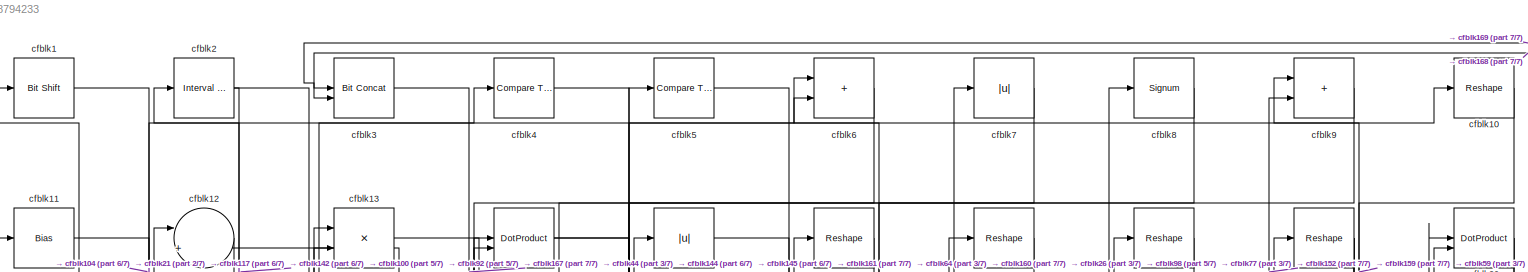
[diagram: root canvas - part 1/7, full width, top band]
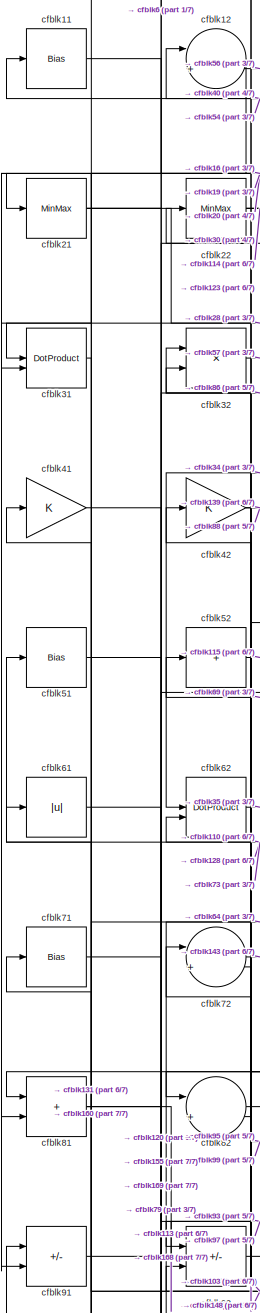
[diagram: root canvas - part 2/7, top left region]
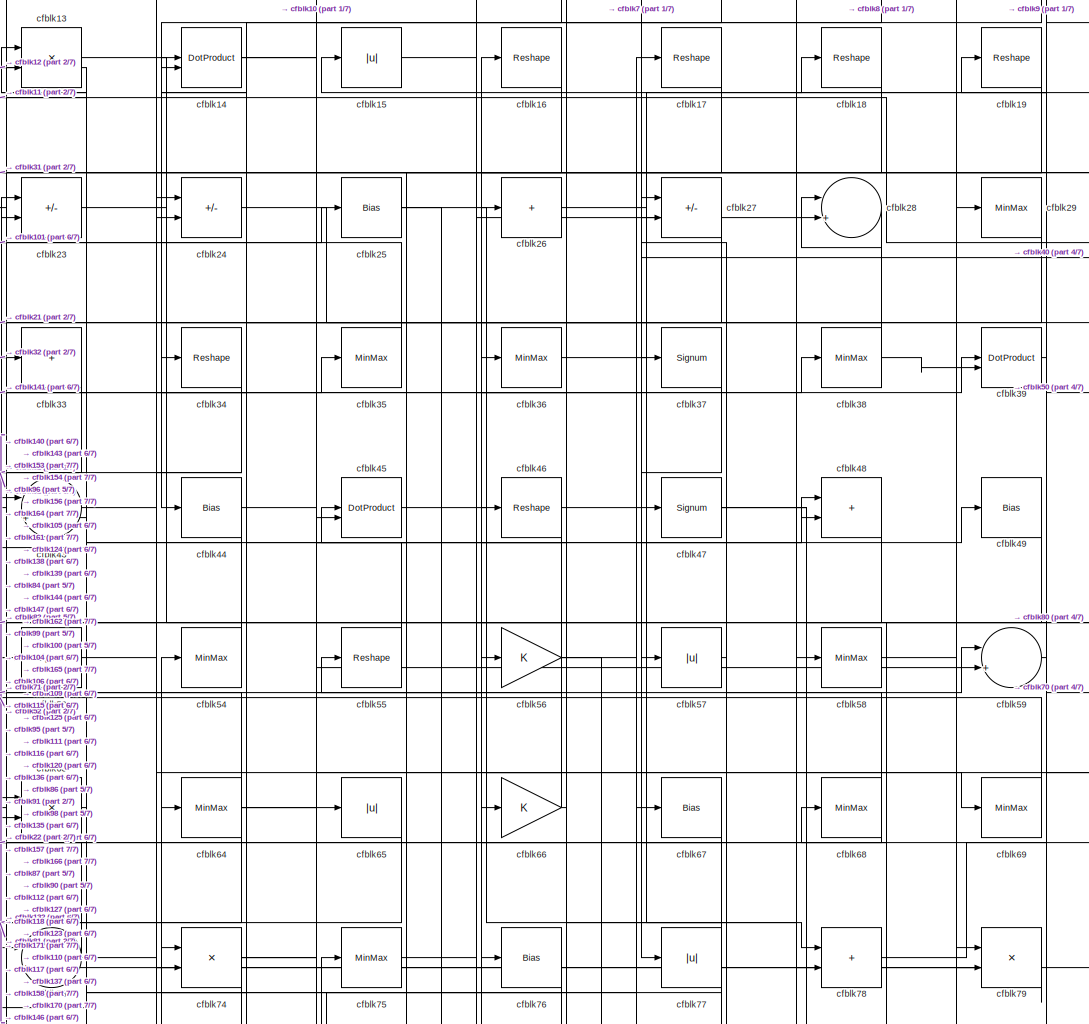
[diagram: root canvas - part 3/7, top center region]
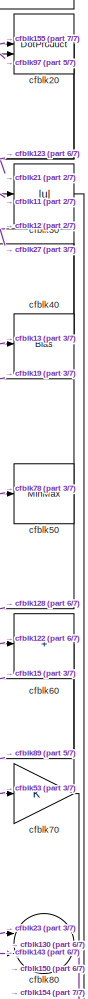
[diagram: root canvas - part 4/7, top right region]
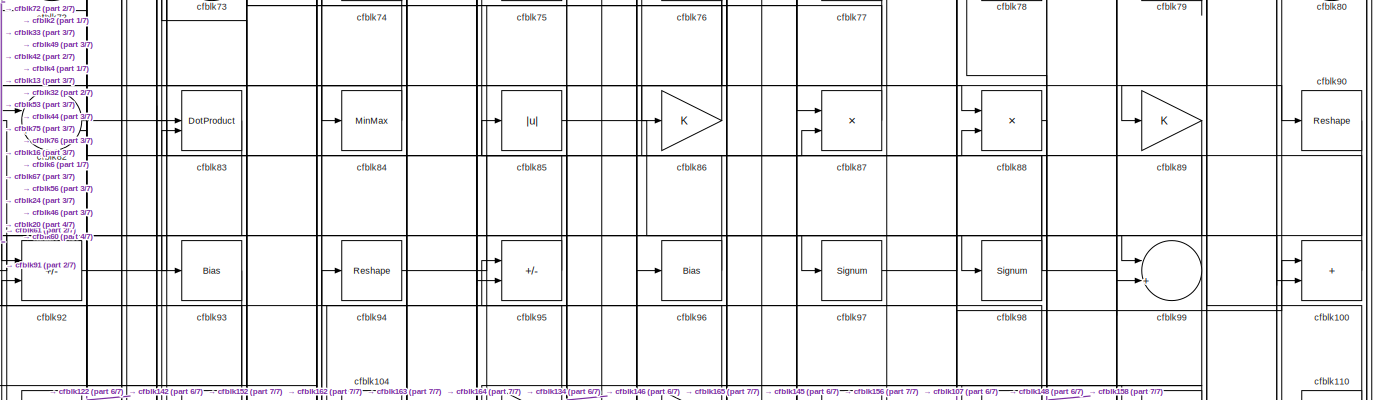
[diagram: root canvas - part 5/7, full width, middle band]
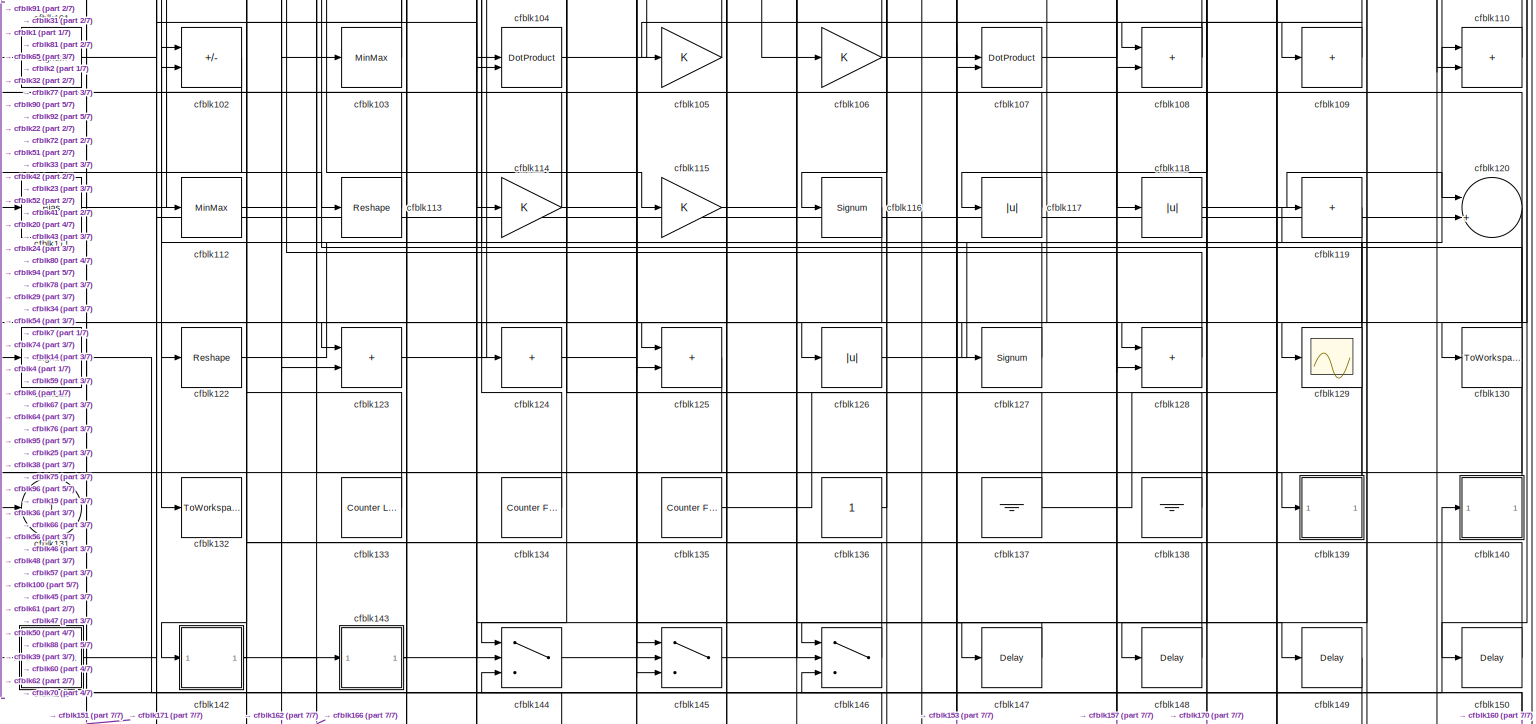
[diagram: root canvas - part 6/7, full width, bottom band]
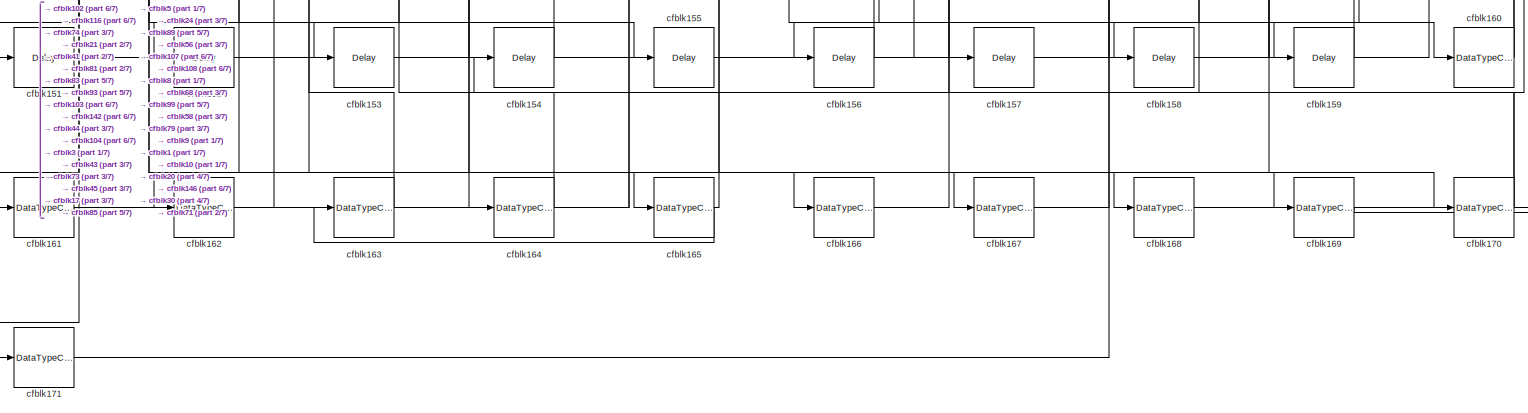
[diagram: root canvas - part 7/7, full width, bottom band]
MODEL slx_f9c0b8794233
KIND model
CONFIG AbsTol = auto
CONFIG EnableMultiTasking = off
CONFIG FixedStep = auto
CONFIG MaxStep = auto
CONFIG MinStep = auto
CONFIG RelTol = 1e-3
CONFIG SampleTimeConstraint = Unconstrained
CONFIG SolverName = VariableStepAuto
CONFIG StartTime = 0.0
CONFIG StopTime = 10.0
BLOCK [Reference] cfblk1  REF=hdlsllib/Logic and Bit
Operations/Bit Shift
  SourceBlock = hdlsllib/Logic and Bit\nOperations/Bit Shift
  SourceType = Bit Shift
BLOCK [Reshape] cfblk10
BLOCK [Sum] cfblk100
  IconShape = rectangular
BLOCK [Signum] cfblk101
BLOCK [Sum] cfblk102
  IconShape = rectangular
  Inputs = +-
BLOCK [MinMax] cfblk103
BLOCK [DotProduct] cfblk104
  OutDataTypeStr = Inherit: Inherit via internal rule
BLOCK [Gain] cfblk105
BLOCK [Gain] cfblk106
BLOCK [DotProduct] cfblk107
  OutDataTypeStr = Inherit: Inherit via internal rule
BLOCK [Sum] cfblk108
  IconShape = rectangular
BLOCK [Sum] cfblk109
  IconShape = rectangular
  Inputs = +
BLOCK [Bias] cfblk11
  Bias = 0.0
  SaturateOnIntegerOverflow = off
BLOCK [Sum] cfblk110
  IconShape = rectangular
BLOCK [Bias] cfblk111
  Bias = 0.0
  SaturateOnIntegerOverflow = off
BLOCK [MinMax] cfblk112
BLOCK [Reshape] cfblk113
BLOCK [Gain] cfblk114
BLOCK [Gain] cfblk115
BLOCK [Signum] cfblk116
BLOCK [Abs] cfblk117
  SaturateOnIntegerOverflow = off
BLOCK [Abs] cfblk118
  SaturateOnIntegerOverflow = off
BLOCK [Sum] cfblk119
  IconShape = rectangular
  Inputs = +
BLOCK [Sum] cfblk12
  Inputs = |++
BLOCK [Sum] cfblk120
  Inputs = |++
BLOCK [Signum] cfblk121
BLOCK [Reshape] cfblk122
BLOCK [Sum] cfblk123
  IconShape = rectangular
BLOCK [Sum] cfblk124
  IconShape = rectangular
  Inputs = +
BLOCK [Sum] cfblk125
  IconShape = rectangular
BLOCK [Abs] cfblk126
  SaturateOnIntegerOverflow = off
BLOCK [Signum] cfblk127
BLOCK [Sum] cfblk128
  IconShape = rectangular
BLOCK [Scope] cfblk129
  Floating = off
  NumInputPorts = 1
  ScopeSpecificationString = Simulink.scopes.TimeScopeBlockCfg('CurrentConfiguration', extmgr.ConfigurationSet(extmgr.Configuration('Core','General UI',true),extmgr.Configuration('Core','Source UI',true),extmgr.Configuration('Sources','WiredSimulink',true,'DataLoggingVariableName','ScopeData2','DataLoggingSaveFormat','Array','DataLoggingLimitDataPoints',true,'DataLoggingDecimation','1'),extmgr.Configuration('Visuals','Time Do...<+868ch>
BLOCK [Product] cfblk13
  Inputs = */
  RndMeth = Zero
  SaturateOnIntegerOverflow = on
BLOCK [ToWorkspace] cfblk130
  MaxDataPoints = inf
  SampleTime = -1
  SaveFormat = Timeseries
  VariableName = simout
BLOCK [Outport] cfblk131
  VectorParamsAs1DForOutWhenUnconnected = off
BLOCK [ToWorkspace] cfblk132
  MaxDataPoints = inf
  SampleTime = -1
  SaveFormat = Timeseries
  VariableName = simout
BLOCK [Reference] cfblk133  REF=hdlsllib/Sources/Counter
Limited
  SourceBlock = hdlsllib/Sources/Counter\nLimited
  SourceType = Counter Limited
BLOCK [Reference] cfblk134  REF=hdlsllib/Sources/Counter
Free-Running
  SourceBlock = hdlsllib/Sources/Counter\nFree-Running
  SourceType = Counter Free-Running
BLOCK [Reference] cfblk135  REF=hdlsllib/Sources/Counter
Free-Running
  SourceBlock = hdlsllib/Sources/Counter\nFree-Running
  SourceType = Counter Free-Running
BLOCK [Constant] cfblk136
  SampleTime = -1
BLOCK [Ground] cfblk137
BLOCK [Ground] cfblk138
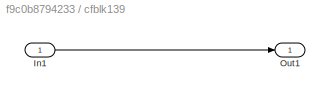
BLOCK [SubSystem] cfblk139
  LibrarySourceBlock = hdlsllib/Ports &\nSubsystems/Subsystem
BLOCK [Inport] cfblk139/In1
BLOCK [Outport] cfblk139/Out1
BLOCK [DotProduct] cfblk14
  OutDataTypeStr = Inherit: Inherit via internal rule
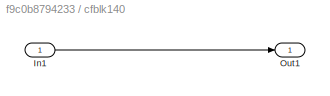
BLOCK [SubSystem] cfblk140
  LibrarySourceBlock = hdlsllib/Ports &\nSubsystems/Subsystem
BLOCK [Inport] cfblk140/In1
BLOCK [Outport] cfblk140/Out1
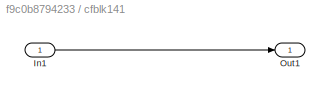
BLOCK [SubSystem] cfblk141
  LibrarySourceBlock = hdlsllib/Ports &\nSubsystems/Subsystem
BLOCK [Inport] cfblk141/In1
BLOCK [Outport] cfblk141/Out1
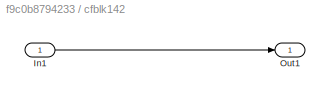
BLOCK [SubSystem] cfblk142
  LibrarySourceBlock = hdlsllib/Ports &\nSubsystems/Subsystem
BLOCK [Inport] cfblk142/In1
BLOCK [Outport] cfblk142/Out1
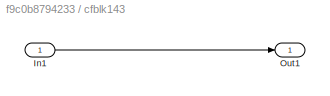
BLOCK [SubSystem] cfblk143
  LibrarySourceBlock = hdlsllib/Ports &\nSubsystems/Subsystem
BLOCK [Inport] cfblk143/In1
BLOCK [Outport] cfblk143/Out1
BLOCK [Switch] cfblk144
  InputSameDT = off
  SaturateOnIntegerOverflow = off
BLOCK [Switch] cfblk145
  InputSameDT = off
  SaturateOnIntegerOverflow = off
BLOCK [Switch] cfblk146
  InputSameDT = off
  SaturateOnIntegerOverflow = off
BLOCK [Delay] cfblk147
  InputPortMap = u0
  SampleTime = 1
BLOCK [Delay] cfblk148
  InputPortMap = u0
  SampleTime = 1
BLOCK [Delay] cfblk149
  InputPortMap = u0
  SampleTime = 1
BLOCK [Abs] cfblk15
  SaturateOnIntegerOverflow = off
BLOCK [Delay] cfblk150
  InputPortMap = u0
  SampleTime = 1
BLOCK [Delay] cfblk151
  InputPortMap = u0
  SampleTime = 1
BLOCK [Delay] cfblk152
  InputPortMap = u0
  SampleTime = 1
BLOCK [Delay] cfblk153
  InputPortMap = u0
  SampleTime = 1
BLOCK [Delay] cfblk154
  InputPortMap = u0
  SampleTime = 1
BLOCK [Delay] cfblk155
  InputPortMap = u0
  SampleTime = 1
BLOCK [Delay] cfblk156
  InputPortMap = u0
  SampleTime = 1
BLOCK [Delay] cfblk157
  InputPortMap = u0
  SampleTime = 1
BLOCK [Delay] cfblk158
  InputPortMap = u0
  SampleTime = 1
BLOCK [Delay] cfblk159
  InputPortMap = u0
  SampleTime = 1
BLOCK [Reshape] cfblk16
BLOCK [DataTypeConversion] cfblk160
  RndMeth = Floor
  SaturateOnIntegerOverflow = off
BLOCK [DataTypeConversion] cfblk161
  OutDataTypeStr = uint8
  RndMeth = Floor
  SaturateOnIntegerOverflow = off
BLOCK [DataTypeConversion] cfblk162
  RndMeth = Floor
  SaturateOnIntegerOverflow = off
BLOCK [DataTypeConversion] cfblk163
  OutDataTypeStr = uint8
  RndMeth = Floor
  SaturateOnIntegerOverflow = off
BLOCK [DataTypeConversion] cfblk164
  OutDataTypeStr = uint8
  RndMeth = Floor
  SaturateOnIntegerOverflow = off
BLOCK [DataTypeConversion] cfblk165
  RndMeth = Floor
  SaturateOnIntegerOverflow = off
BLOCK [DataTypeConversion] cfblk166
  OutDataTypeStr = uint8
  RndMeth = Floor
  SaturateOnIntegerOverflow = off
BLOCK [DataTypeConversion] cfblk167
  OutDataTypeStr = uint8
  RndMeth = Floor
  SaturateOnIntegerOverflow = off
BLOCK [DataTypeConversion] cfblk168
  OutDataTypeStr = uint8
  RndMeth = Floor
  SaturateOnIntegerOverflow = off
BLOCK [DataTypeConversion] cfblk169
  OutDataTypeStr = uint8
  RndMeth = Floor
  SaturateOnIntegerOverflow = off
BLOCK [Reshape] cfblk17
BLOCK [DataTypeConversion] cfblk170
  RndMeth = Floor
  SaturateOnIntegerOverflow = off
BLOCK [DataTypeConversion] cfblk171
  OutDataTypeStr = uint8
  RndMeth = Floor
  SaturateOnIntegerOverflow = off
BLOCK [Reshape] cfblk18
BLOCK [Reshape] cfblk19
BLOCK [Reference] cfblk2  REF=hdlsllib/Logic and Bit
Operations/Interval Test
  SourceBlock = hdlsllib/Logic and Bit\nOperations/Interval Test
  SourceType = Interval Test
BLOCK [DotProduct] cfblk20
  OutDataTypeStr = Inherit: Inherit via internal rule
BLOCK [MinMax] cfblk21
BLOCK [MinMax] cfblk22
BLOCK [Sum] cfblk23
  IconShape = rectangular
  Inputs = +-
BLOCK [Sum] cfblk24
  IconShape = rectangular
  Inputs = +-
BLOCK [Bias] cfblk25
  Bias = 0.0
  SaturateOnIntegerOverflow = off
BLOCK [Sum] cfblk26
  IconShape = rectangular
  Inputs = +
BLOCK [Sum] cfblk27
  IconShape = rectangular
  Inputs = +-
BLOCK [Sum] cfblk28
  Inputs = |++
BLOCK [MinMax] cfblk29
BLOCK [Reference] cfblk3  REF=hdlsllib/Logic and Bit
Operations/Bit Concat
  SourceBlock = hdlsllib/Logic and Bit\nOperations/Bit Concat
  SourceType = Bit Concat
BLOCK [Abs] cfblk30
  SaturateOnIntegerOverflow = off
BLOCK [DotProduct] cfblk31
  OutDataTypeStr = Inherit: Inherit via internal rule
BLOCK [Product] cfblk32
  Inputs = */
  RndMeth = Zero
  SaturateOnIntegerOverflow = on
BLOCK [Sum] cfblk33
  IconShape = rectangular
  Inputs = +
BLOCK [Reshape] cfblk34
BLOCK [MinMax] cfblk35
BLOCK [MinMax] cfblk36
BLOCK [Signum] cfblk37
BLOCK [MinMax] cfblk38
BLOCK [DotProduct] cfblk39
  OutDataTypeStr = Inherit: Inherit via internal rule
BLOCK [Reference] cfblk4  REF=hdlsllib/Logic and Bit
Operations/Compare
To Constant
  SourceBlock = hdlsllib/Logic and Bit\nOperations/Compare\nTo Constant
  SourceType = Compare To Constant
BLOCK [Bias] cfblk40
  Bias = 0.0
  SaturateOnIntegerOverflow = off
BLOCK [Gain] cfblk41
BLOCK [Gain] cfblk42
BLOCK [Sum] cfblk43
  Inputs = |++
BLOCK [Bias] cfblk44
  Bias = 0.0
  SaturateOnIntegerOverflow = off
BLOCK [DotProduct] cfblk45
  OutDataTypeStr = Inherit: Inherit via internal rule
BLOCK [Reshape] cfblk46
BLOCK [Signum] cfblk47
BLOCK [Sum] cfblk48
  IconShape = rectangular
BLOCK [Bias] cfblk49
  Bias = 0.0
  SaturateOnIntegerOverflow = off
BLOCK [Reference] cfblk5  REF=hdlsllib/Logic and Bit
Operations/Compare
To Constant
  SourceBlock = hdlsllib/Logic and Bit\nOperations/Compare\nTo Constant
  SourceType = Compare To Constant
BLOCK [MinMax] cfblk50
BLOCK [Bias] cfblk51
  Bias = 0.0
  SaturateOnIntegerOverflow = off
BLOCK [Sum] cfblk52
  IconShape = rectangular
  Inputs = +
BLOCK [Signum] cfblk53
BLOCK [MinMax] cfblk54
BLOCK [Reshape] cfblk55
BLOCK [Gain] cfblk56
BLOCK [Abs] cfblk57
  SaturateOnIntegerOverflow = off
BLOCK [MinMax] cfblk58
BLOCK [Sum] cfblk59
  Inputs = |++
BLOCK [Sum] cfblk6
  IconShape = rectangular
BLOCK [Sum] cfblk60
  IconShape = rectangular
  Inputs = +
BLOCK [Abs] cfblk61
  SaturateOnIntegerOverflow = off
BLOCK [DotProduct] cfblk62
  OutDataTypeStr = Inherit: Inherit via internal rule
BLOCK [Product] cfblk63
  Inputs = */
  RndMeth = Zero
  SaturateOnIntegerOverflow = on
BLOCK [MinMax] cfblk64
BLOCK [Abs] cfblk65
  SaturateOnIntegerOverflow = off
BLOCK [Gain] cfblk66
BLOCK [Bias] cfblk67
  Bias = 0.0
  SaturateOnIntegerOverflow = off
BLOCK [MinMax] cfblk68
BLOCK [MinMax] cfblk69
BLOCK [Abs] cfblk7
  SaturateOnIntegerOverflow = off
BLOCK [Gain] cfblk70
BLOCK [Bias] cfblk71
  Bias = 0.0
  SaturateOnIntegerOverflow = off
BLOCK [Sum] cfblk72
  Inputs = |++
BLOCK [Sum] cfblk73
  Inputs = |++
BLOCK [Product] cfblk74
  Inputs = */
  RndMeth = Zero
  SaturateOnIntegerOverflow = on
BLOCK [MinMax] cfblk75
BLOCK [Bias] cfblk76
  Bias = 0.0
  SaturateOnIntegerOverflow = off
BLOCK [Abs] cfblk77
  SaturateOnIntegerOverflow = off
BLOCK [Sum] cfblk78
  IconShape = rectangular
BLOCK [Product] cfblk79
  Inputs = */
  RndMeth = Zero
  SaturateOnIntegerOverflow = on
BLOCK [Signum] cfblk8
BLOCK [Sum] cfblk80
  Inputs = |++
BLOCK [Sum] cfblk81
  IconShape = rectangular
BLOCK [Sum] cfblk82
  Inputs = |++
BLOCK [DotProduct] cfblk83
  OutDataTypeStr = Inherit: Inherit via internal rule
BLOCK [MinMax] cfblk84
BLOCK [Abs] cfblk85
  SaturateOnIntegerOverflow = off
BLOCK [Gain] cfblk86
BLOCK [Product] cfblk87
  Inputs = */
  RndMeth = Zero
  SaturateOnIntegerOverflow = on
BLOCK [Product] cfblk88
  Inputs = */
  RndMeth = Zero
  SaturateOnIntegerOverflow = on
BLOCK [Gain] cfblk89
BLOCK [Sum] cfblk9
  IconShape = rectangular
BLOCK [Reshape] cfblk90
BLOCK [Sum] cfblk91
  IconShape = rectangular
  Inputs = +-
BLOCK [Sum] cfblk92
  IconShape = rectangular
  Inputs = +-
BLOCK [Bias] cfblk93
  Bias = 0.0
  SaturateOnIntegerOverflow = off
BLOCK [Reshape] cfblk94
BLOCK [Sum] cfblk95
  IconShape = rectangular
  Inputs = +-
BLOCK [Bias] cfblk96
  Bias = 0.0
  SaturateOnIntegerOverflow = off
BLOCK [Signum] cfblk97
BLOCK [Signum] cfblk98
BLOCK [Sum] cfblk99
  Inputs = |++
LINE cfblk100:1 -> cfblk75:1
LINE cfblk101:1 -> cfblk25:1
LINE cfblk102:1 -> cfblk171:1
LINE cfblk103:1 -> cfblk41:1
LINE cfblk104:1 -> cfblk67:1
LINE cfblk105:1 -> cfblk64:1
NET cfblk106:1 -> cfblk45:1, cfblk48:2
LINE cfblk107:1 -> cfblk100:1
NET cfblk108:1 -> cfblk105:1, cfblk61:1
LINE cfblk109:1 -> cfblk108:1
LINE cfblk10:1 -> cfblk159:1
LINE cfblk110:1 -> cfblk62:2
LINE cfblk111:1 -> cfblk24:2
LINE cfblk112:1 -> cfblk33:1
LINE cfblk113:1 -> cfblk91:1
NET cfblk114:1 -> cfblk101:1, cfblk126:1
LINE cfblk115:1 -> cfblk38:1
LINE cfblk116:1 -> cfblk151:1
LINE cfblk117:1 -> cfblk2:1
LINE cfblk118:1 -> cfblk120:1
LINE cfblk119:1 -> cfblk121:1
LINE cfblk11:1 -> cfblk30:1
NET cfblk120:1 -> cfblk129:1, cfblk145:3, cfblk66:1
LINE cfblk121:1 -> cfblk140:1
LINE cfblk122:1 -> cfblk60:1
LINE cfblk123:1 -> cfblk78:2
LINE cfblk124:1 -> cfblk110:1
LINE cfblk125:1 -> cfblk141:1
LINE cfblk126:1 -> cfblk119:1
LINE cfblk127:1 -> cfblk102:1
LINE cfblk128:1 -> cfblk51:1
LINE cfblk12:1 -> cfblk31:2
LINE cfblk133:1 -> cfblk72:2
LINE cfblk134:1 -> cfblk94:1
LINE cfblk135:1 -> cfblk47:1
LINE cfblk136:1 -> cfblk36:1
NET cfblk137:1 -> cfblk14:1, cfblk29:1
LINE cfblk138:1 -> cfblk74:1
LINE cfblk139/In1:1 -> cfblk139/Out1:1
NET cfblk139:1 -> cfblk34:1, cfblk54:1
LINE cfblk13:1 -> cfblk40:1
LINE cfblk140/In1:1 -> cfblk140/Out1:1
LINE cfblk140:1 -> cfblk23:1
LINE cfblk141/In1:1 -> cfblk141/Out1:1
LINE cfblk141:1 -> cfblk39:1
LINE cfblk142/In1:1 -> cfblk142/Out1:1
NET cfblk142:1 -> cfblk166:1, cfblk92:2
LINE cfblk143/In1:1 -> cfblk143/Out1:1
NET cfblk143:1 -> cfblk43:1, cfblk80:2
LINE cfblk144:1 -> cfblk59:1
LINE cfblk145:1 -> cfblk96:1
LINE cfblk146:1 -> cfblk95:1
LINE cfblk147:1 -> cfblk144:2
LINE cfblk148:1 -> cfblk32:2
LINE cfblk149:1 -> cfblk144:3
NET cfblk14:1 -> cfblk147:1, cfblk65:1
LINE cfblk150:1 -> cfblk102:2
LINE cfblk151:1 -> cfblk104:1
LINE cfblk152:1 -> cfblk9:2
LINE cfblk153:1 -> cfblk107:2
LINE cfblk154:1 -> cfblk73:1
LINE cfblk155:1 -> cfblk20:1
LINE cfblk156:1 -> cfblk24:1
LINE cfblk157:1 -> cfblk108:2
LINE cfblk158:1 -> cfblk79:2
LINE cfblk159:1 -> cfblk1:1
LINE cfblk15:1 -> cfblk28:2
NET cfblk160:1 -> cfblk146:3, cfblk71:1
LINE cfblk161:1 -> cfblk5:1
NET cfblk162:1 -> cfblk103:1, cfblk45:2
LINE cfblk163:1 -> cfblk83:1
LINE cfblk164:1 -> cfblk83:2
NET cfblk165:1 -> cfblk163:1, cfblk85:1
LINE cfblk166:1 -> cfblk17:1
LINE cfblk167:1 -> cfblk8:1
LINE cfblk168:1 -> cfblk3:1
LINE cfblk169:1 -> cfblk3:2
LINE cfblk16:1 -> cfblk31:1
NET cfblk170:1 -> cfblk107:1, cfblk68:1
LINE cfblk171:1 -> cfblk58:1
LINE cfblk17:1 -> cfblk165:1
LINE cfblk18:1 -> cfblk76:1
NET cfblk19:1 -> cfblk111:1, cfblk116:1, cfblk91:2
LINE cfblk1:1 -> cfblk104:2
NET cfblk20:1 -> cfblk123:1, cfblk21:1
NET cfblk21:1 -> cfblk169:1, cfblk6:2, cfblk79:1
NET cfblk22:1 -> cfblk114:1, cfblk123:2, cfblk128:2
LINE cfblk23:1 -> cfblk80:1
LINE cfblk24:1 -> cfblk87:1
NET cfblk25:1 -> cfblk106:1, cfblk69:1
LINE cfblk26:1 -> cfblk78:1
LINE cfblk27:1 -> cfblk63:1
LINE cfblk28:1 -> cfblk81:2
LINE cfblk29:1 -> cfblk124:1
NET cfblk2:1 -> cfblk100:2, cfblk142:1
LINE cfblk30:1 -> cfblk154:1
LINE cfblk31:1 -> cfblk131:1
LINE cfblk32:1 -> cfblk57:1
LINE cfblk33:1 -> cfblk92:1
NET cfblk34:1 -> cfblk62:1, cfblk74:2
LINE cfblk35:1 -> cfblk13:1
LINE cfblk36:1 -> cfblk18:1
LINE cfblk37:1 -> cfblk77:1
NET cfblk38:1 -> cfblk28:1, cfblk39:2
LINE cfblk39:1 -> cfblk146:1
LINE cfblk3:1 -> cfblk167:1
NET cfblk40:1 -> cfblk12:1, cfblk27:2
LINE cfblk41:1 -> cfblk155:1
NET cfblk42:1 -> cfblk139:1, cfblk88:1
LINE cfblk43:1 -> cfblk164:1
NET cfblk44:1 -> cfblk153:1, cfblk99:1
LINE cfblk45:1 -> cfblk118:1
NET cfblk46:1 -> cfblk149:1, cfblk84:1
NET cfblk47:1 -> cfblk110:2, cfblk117:1
LINE cfblk48:1 -> cfblk146:2
LINE cfblk49:1 -> cfblk82:2
LINE cfblk4:1 -> cfblk145:1
NET cfblk50:1 -> cfblk128:1, cfblk19:1
LINE cfblk51:1 -> cfblk120:2
LINE cfblk52:1 -> cfblk115:1
LINE cfblk53:1 -> cfblk70:1
LINE cfblk54:1 -> cfblk11:1
LINE cfblk55:1 -> cfblk14:2
NET cfblk56:1 -> cfblk125:2, cfblk12:2, cfblk157:1, cfblk90:1
LINE cfblk57:1 -> cfblk127:1
LINE cfblk58:1 -> cfblk170:1
LINE cfblk59:1 -> cfblk9:1
LINE cfblk5:1 -> cfblk160:1
LINE cfblk60:1 -> cfblk89:1
LINE cfblk61:1 -> cfblk97:1
LINE cfblk62:1 -> cfblk35:1
LINE cfblk63:1 -> cfblk23:2
NET cfblk64:1 -> cfblk10:1, cfblk43:2, cfblk59:2, cfblk81:1
LINE cfblk65:1 -> cfblk132:1
NET cfblk66:1 -> cfblk46:1, cfblk55:1
LINE cfblk67:1 -> cfblk86:1
NET cfblk68:1 -> cfblk27:1, cfblk63:2
LINE cfblk69:1 -> cfblk52:1
LINE cfblk6:1 -> cfblk145:2
NET cfblk70:1 -> cfblk130:1, cfblk15:1
LINE cfblk71:1 -> cfblk56:1
LINE cfblk72:1 -> cfblk143:1
NET cfblk73:1 -> cfblk22:1, cfblk37:1
NET cfblk74:1 -> cfblk161:1, cfblk48:1, cfblk49:1
LINE cfblk75:1 -> cfblk109:1
NET cfblk76:1 -> cfblk125:1, cfblk95:2
NET cfblk77:1 -> cfblk112:1, cfblk7:1
LINE cfblk78:1 -> cfblk50:1
LINE cfblk79:1 -> cfblk73:2
LINE cfblk7:1 -> cfblk144:1
LINE cfblk80:1 -> cfblk150:1
NET cfblk81:1 -> cfblk113:1, cfblk168:1
LINE cfblk82:1 -> cfblk88:2
LINE cfblk83:1 -> cfblk162:1
LINE cfblk84:1 -> cfblk82:1
LINE cfblk85:1 -> cfblk98:1
LINE cfblk86:1 -> cfblk32:1
LINE cfblk87:1 -> cfblk53:1
LINE cfblk88:1 -> cfblk148:1
LINE cfblk89:1 -> cfblk156:1
LINE cfblk8:1 -> cfblk44:1
LINE cfblk90:1 -> cfblk122:1
LINE cfblk91:1 -> cfblk93:1
LINE cfblk92:1 -> cfblk4:1
LINE cfblk93:1 -> cfblk152:1
LINE cfblk94:1 -> cfblk87:2
LINE cfblk95:1 -> cfblk72:1
LINE cfblk96:1 -> cfblk13:2
LINE cfblk97:1 -> cfblk20:2
NET cfblk98:1 -> cfblk16:1, cfblk6:1, cfblk99:2
NET cfblk99:1 -> cfblk158:1, cfblk42:1
LINE cfblk9:1 -> cfblk26:1
note: NET lines group one-source signal fan-out (src -> all destinations, sorted); 1:1 wires keep LINE
